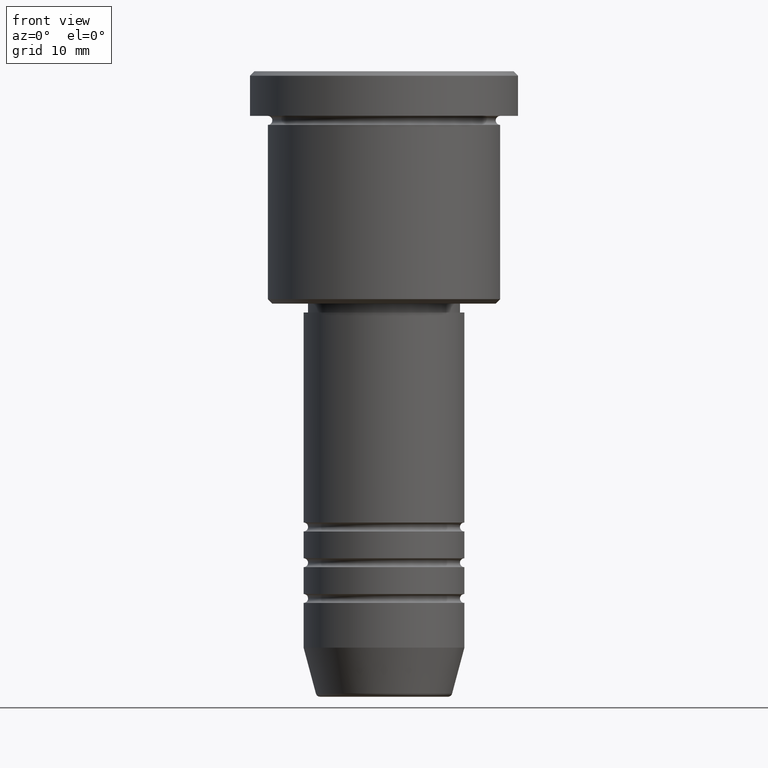
[diagram: clean part render]
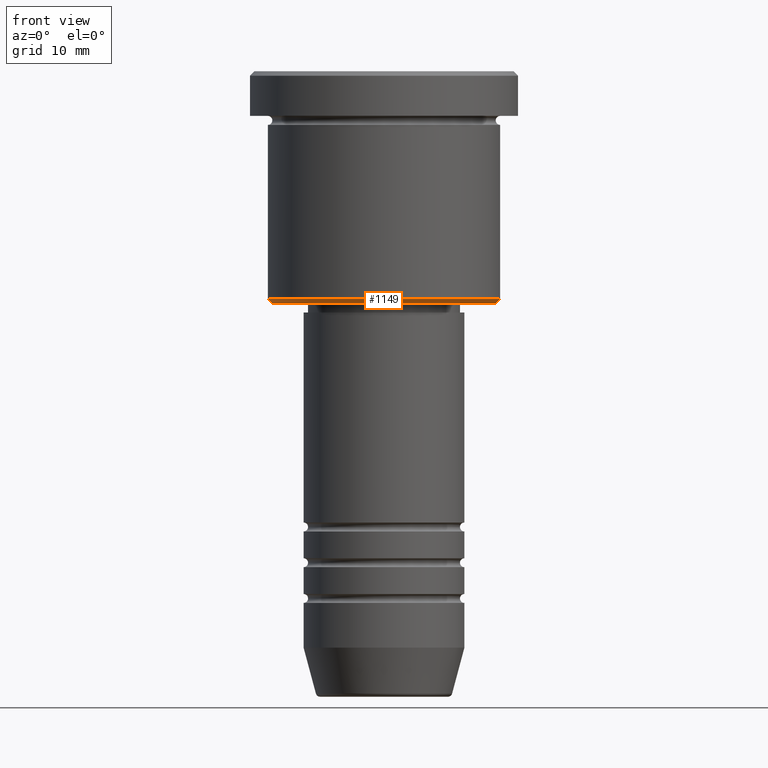
[diagram: same view with one face highlighted and labeled with its STEP entity id]
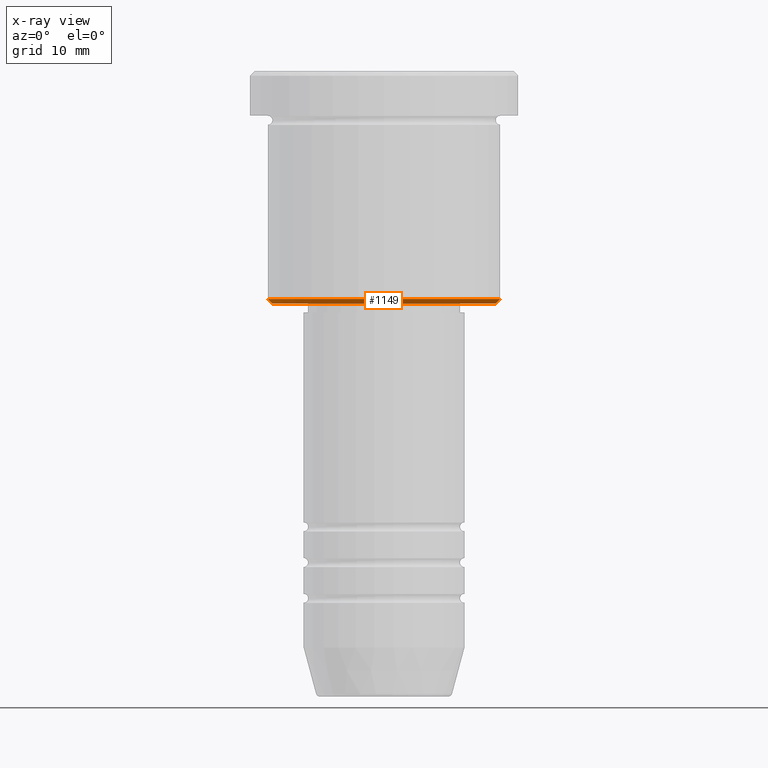
[diagram: x-ray of the same camera — body ghosted, the highlighted face saturated]
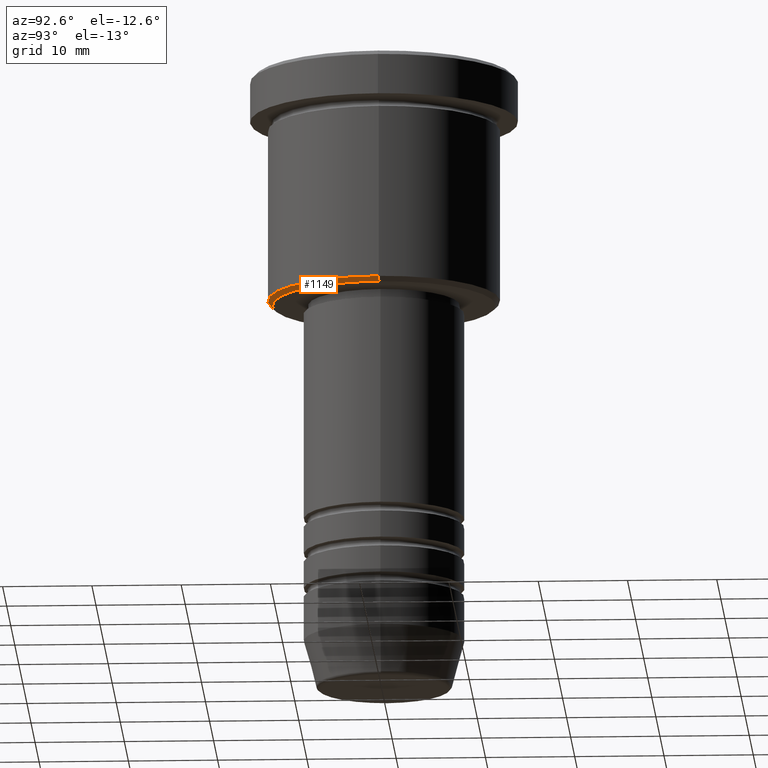
[diagram: same view with one face highlighted and labeled with its STEP entity id]
A machine part, front view. The second image highlights one B-rep face of the part: STEP entity #1149.
The next image is the same camera in x-ray: the body ghosted, the highlighted face saturated — about 0% of this face is hidden behind the body in this view.
A second angle (auxiliary view) of the same face is appended — the face is thin or edge-on in the first view.
In plain terms, the highlighted conical surface has half-angle 45 deg.
Its self-contained STEP definition (entity closure, byte-faithful):
#86 = AXIS2_PLACEMENT_3D ( 'NONE', #799, #244, #513 ) ;
#173 = CIRCLE ( 'NONE', #1041, 13.00000000000000178 ) ;
#178 = CARTESIAN_POINT ( 'NONE',  ( -13.00000000000000178, 1.592040838891559293E-15, -25.49999999999999289 ) ) ;
#235 = VERTEX_POINT ( 'NONE', #726 ) ;
#244 = DIRECTION ( 'NONE',  ( -0.000000000000000000, -0.000000000000000000, 1.000000000000000000 ) ) ;
#251 = VECTOR ( 'NONE', #647, 1000.000000000000000 ) ;
#254 = ORIENTED_EDGE ( 'NONE', *, *, #991, .F. ) ;
#310 = VERTEX_POINT ( 'NONE', #662 ) ;
#341 = CARTESIAN_POINT ( 'NONE',  ( 12.49999999999999289, 0.000000000000000000, -26.00000000000000000 ) ) ;
#342 = CARTESIAN_POINT ( 'NONE',  ( 13.00000000000000178, 0.000000000000000000, -25.49999999999999289 ) ) ;
#350 = DIRECTION ( 'NONE',  ( 0.000000000000000000, 0.000000000000000000, -1.000000000000000000 ) ) ;
#439 = LINE ( 'NONE', #534, #584 ) ;
#449 = DIRECTION ( 'NONE',  ( -1.000000000000000000, 0.000000000000000000, 0.000000000000000000 ) ) ;
#457 = EDGE_CURVE ( 'NONE', #763, #235, #650, .T. ) ;
#479 = EDGE_CURVE ( 'NONE', #763, #1109, #439, .T. ) ;
#513 = DIRECTION ( 'NONE',  ( 1.000000000000000000, 0.000000000000000000, 0.000000000000000000 ) ) ;
#534 = CARTESIAN_POINT ( 'NONE',  ( 13.00000000000000178, 0.000000000000000000, -25.49999999999999289 ) ) ;
#559 = LINE ( 'NONE', #178, #251 ) ;
#562 = DIRECTION ( 'NONE',  ( -0.000000000000000000, -0.000000000000000000, 1.000000000000000000 ) ) ;
#584 = VECTOR ( 'NONE', #634, 1000.000000000000000 ) ;
#588 = CONICAL_SURFACE ( 'NONE', #86, 13.00000000000000178, 0.7853981633974500554 ) ;
#606 = EDGE_CURVE ( 'NONE', #235, #310, #559, .T. ) ;
#608 = AXIS2_PLACEMENT_3D ( 'NONE', #998, #350, #449 ) ;
#616 = FACE_OUTER_BOUND ( 'NONE', #698, .T. ) ;
#634 = DIRECTION ( 'NONE',  ( 0.7071067811865487940, 0.000000000000000000, 0.7071067811865463515 ) ) ;
#647 = DIRECTION ( 'NONE',  ( -0.7071067811865487940, 8.659560562354950115E-17, 0.7071067811865463515 ) ) ;
#650 = CIRCLE ( 'NONE', #608, 12.49999999999999289 ) ;
#662 = CARTESIAN_POINT ( 'NONE',  ( -13.00000000000000178, 1.592040838891559293E-15, -25.49999999999999289 ) ) ;
#698 = EDGE_LOOP ( 'NONE', ( #753, #924, #1093, #254 ) ) ;
#726 = CARTESIAN_POINT ( 'NONE',  ( -12.49999999999999289, 1.561424668912874914E-15, -26.00000000000000000 ) ) ;
#753 = ORIENTED_EDGE ( 'NONE', *, *, #606, .F. ) ;
#763 = VERTEX_POINT ( 'NONE', #341 ) ;
#799 = CARTESIAN_POINT ( 'NONE',  ( 0.000000000000000000, 0.000000000000000000, -25.49999999999999289 ) ) ;
#828 = DIRECTION ( 'NONE',  ( -1.000000000000000000, 0.000000000000000000, 0.000000000000000000 ) ) ;
#924 = ORIENTED_EDGE ( 'NONE', *, *, #457, .F. ) ;
#991 = EDGE_CURVE ( 'NONE', #310, #1109, #173, .T. ) ;
#998 = CARTESIAN_POINT ( 'NONE',  ( 0.000000000000000000, 0.000000000000000000, -26.00000000000000000 ) ) ;
#1025 = CARTESIAN_POINT ( 'NONE',  ( 0.000000000000000000, 0.000000000000000000, -25.49999999999999289 ) ) ;
#1041 = AXIS2_PLACEMENT_3D ( 'NONE', #1025, #562, #828 ) ;
#1093 = ORIENTED_EDGE ( 'NONE', *, *, #479, .T. ) ;
#1109 = VERTEX_POINT ( 'NONE', #342 ) ;
#1149 = ADVANCED_FACE ( 'NONE', ( #616 ), #588, .T. ) ;